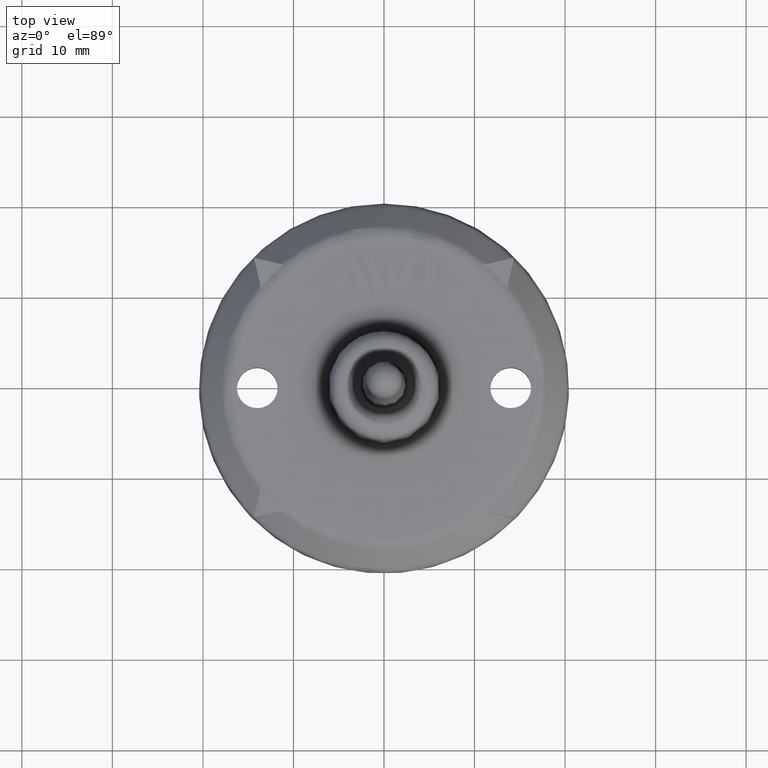
[diagram: clean part render]
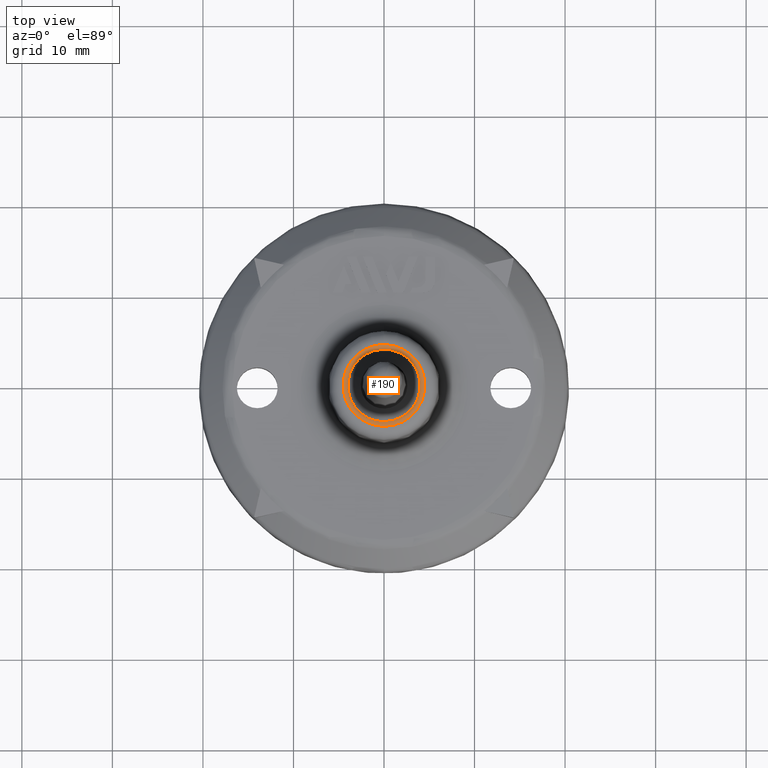
[diagram: same view with one face highlighted and labeled with its STEP entity id]
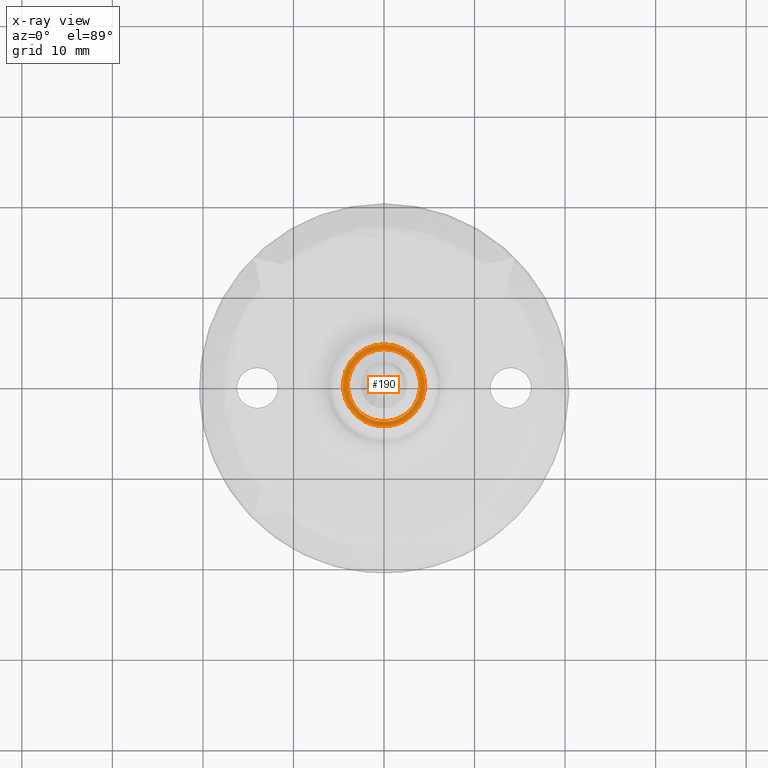
[diagram: x-ray of the same camera — body ghosted, the highlighted face saturated]
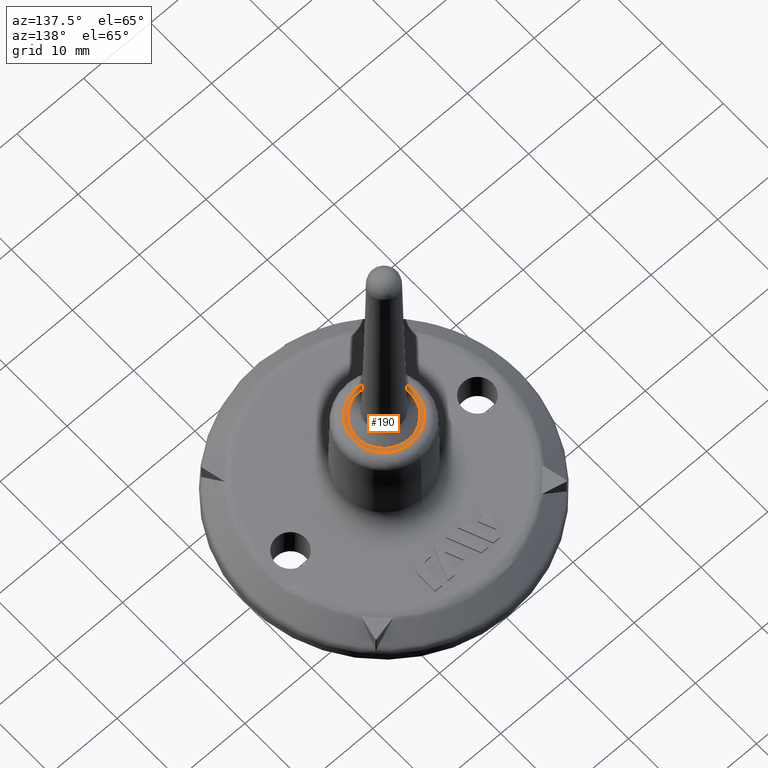
[diagram: same view with one face highlighted and labeled with its STEP entity id]
A machine part, top view. The second image highlights one B-rep face of the part: STEP entity #190.
The next image is the same camera in x-ray: the body ghosted, the highlighted face saturated — about 0% of this face is hidden behind the body in this view.
A second angle (auxiliary view) of the same face is appended — the face is thin or edge-on in the first view.
In plain terms, the highlighted planar face has unit normal (0, -0, -1).
Its self-contained STEP definition (entity closure, byte-faithful):
#190 = ADVANCED_FACE( '', ( #393, #394 ), #395, .F. );
#393 = FACE_OUTER_BOUND( '', #669, .T. );
#394 = FACE_BOUND( '', #670, .T. );
#395 = PLANE( '', #671 );
#669 = EDGE_LOOP( '', ( #1312 ) );
#670 = EDGE_LOOP( '', ( #1313 ) );
#671 = AXIS2_PLACEMENT_3D( '', #1314, #1315, #1316 );
#1312 = ORIENTED_EDGE( '', *, *, #1871, .T. );
#1313 = ORIENTED_EDGE( '', *, *, #1884, .F. );
#1314 = CARTESIAN_POINT( '', ( -2.24944924219907E-031, 3.67375072843259E-015, 19.9996280000000 ) );
#1315 = DIRECTION( '', ( 1.12474554136660E-032, -1.83690953073357E-016, -1.00000000000000 ) );
#1316 = DIRECTION( '', ( -6.12303176911189E-017, 1.00000000000000, -1.83690953073357E-016 ) );
#1871 = EDGE_CURVE( '', #2278, #2278, #2279, .F. );
#1884 = EDGE_CURVE( '', #2300, #2300, #2301, .F. );
#2278 = VERTEX_POINT( '', #3007 );
#2279 = CIRCLE( '', #3008, 4.52493861201543 );
#2300 = VERTEX_POINT( '', #3036 );
#2301 = CIRCLE( '', #3037, 4.00000000000000 );
#3007 = CARTESIAN_POINT( '', ( -2.77063428746515E-016, 4.52493861201543, 19.9996280000000 ) );
#3008 = AXIS2_PLACEMENT_3D( '', #3421, #3422, #3423 );
#3036 = CARTESIAN_POINT( '', ( 1.68711831206127E-031, 4.00000000000000, 19.9996280000000 ) );
#3037 = AXIS2_PLACEMENT_3D( '', #3449, #3450, #3451 );
#3421 = CARTESIAN_POINT( '', ( -2.24944924219907E-031, 3.67375072843259E-015, 19.9996280000000 ) );
#3422 = DIRECTION( '', ( 1.12474554136660E-032, -1.83690953073357E-016, -1.00000000000000 ) );
#3423 = DIRECTION( '', ( -6.12303176911189E-017, 1.00000000000000, -1.83690953073357E-016 ) );
#3449 = CARTESIAN_POINT( '', ( 1.68711831206127E-031, 3.67375072843259E-015, 19.9996280000000 ) );
#3450 = DIRECTION( '', ( 1.12474554136660E-032, -1.83690953073357E-016, -1.00000000000000 ) );
#3451 = DIRECTION( '', ( 0.000000000000000, 1.00000000000000, -1.83690953073357E-016 ) );